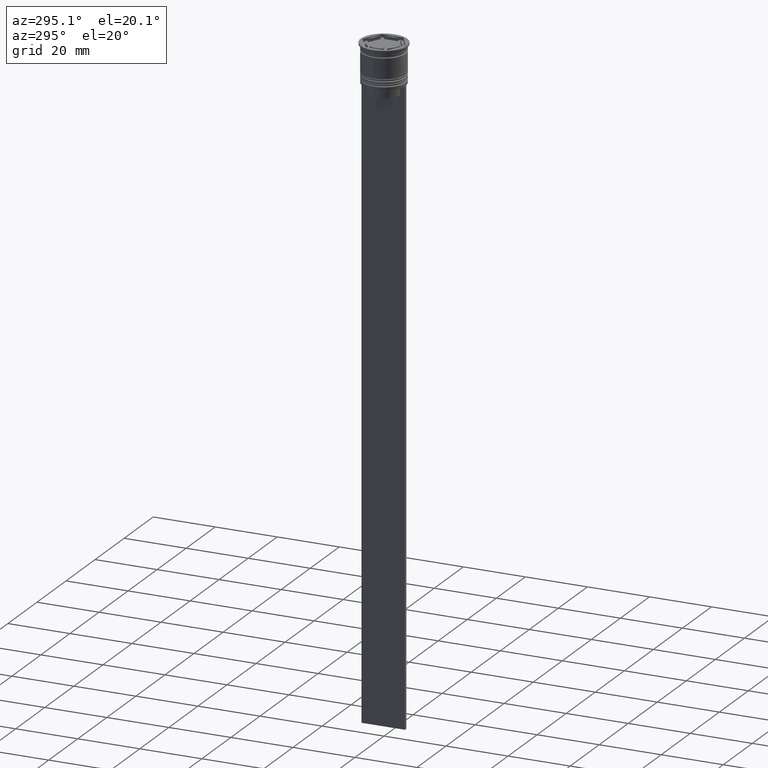
[diagram: clean part render]
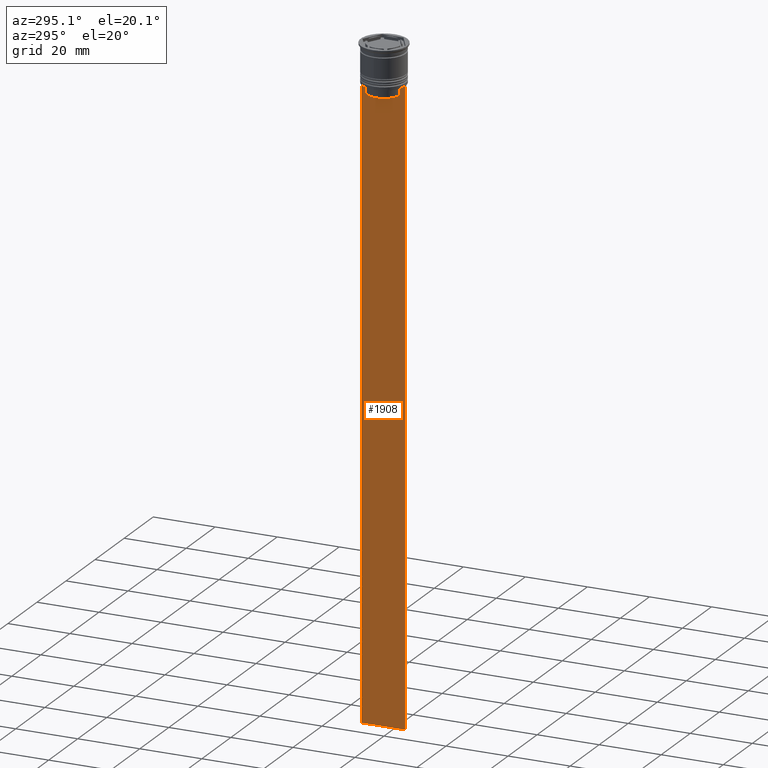
[diagram: same view with one face highlighted and labeled with its STEP entity id]
A machine part, auxiliary view. The second image highlights one B-rep face of the part: STEP entity #1908.
In plain terms, the highlighted planar face has unit normal (-1, 0, 0).
Its self-contained STEP definition (entity closure, byte-faithful):
#6 = CARTESIAN_POINT ( 'NONE',  ( -0.5000000000000000000, -5.544156999454441959, -12.83336396790503642 ) ) ;
#23 = CARTESIAN_POINT ( 'NONE',  ( -0.5000000000000000000, -5.878775382679629402, -12.50000000000000000 ) ) ;
#35 = FACE_OUTER_BOUND ( 'NONE', #462, .T. ) ;
#74 = B_SPLINE_CURVE_WITH_KNOTS ( 'NONE', 3,
 ( #1910, #6, #393, #2475 ),
 .UNSPECIFIED., .F., .F.,
 ( 4, 4 ),
 ( 0.02539176325380714666, 0.02610162431828674801 ),
 .UNSPECIFIED. ) ;
#113 = CARTESIAN_POINT ( 'NONE',  ( -0.5000000000000000000, -6.999999999999997335, -212.5000000000000284 ) ) ;
#139 = CARTESIAN_POINT ( 'NONE',  ( -0.5000000000000000000, -5.376802023508029826, 0.000000000000000000 ) ) ;
#190 = LINE ( 'NONE', #2133, #931 ) ;
#218 = ORIENTED_EDGE ( 'NONE', *, *, #1150, .F. ) ;
#233 = VERTEX_POINT ( 'NONE', #372 ) ;
#237 = CARTESIAN_POINT ( 'NONE',  ( -0.5000000000000000000, 7.000000000000002665, -12.50000000000000000 ) ) ;
#248 = VECTOR ( 'NONE', #1520, 1000.000000000000000 ) ;
#270 = EDGE_CURVE ( 'NONE', #1045, #452, #190, .T. ) ;
#318 = CARTESIAN_POINT ( 'NONE',  ( -0.5000000000000000000, 5.544156989057553275, -12.83336397825725861 ) ) ;
#352 = CARTESIAN_POINT ( 'NONE',  ( -0.5000000000000000000, 5.376802023508029826, 0.000000000000000000 ) ) ;
#360 = VERTEX_POINT ( 'NONE', #1397 ) ;
#369 = VECTOR ( 'NONE', #1594, 1000.000000000000000 ) ;
#372 = CARTESIAN_POINT ( 'NONE',  ( -0.5000000000000000000, -6.999999999999997335, -12.50000000000000000 ) ) ;
#373 = ORIENTED_EDGE ( 'NONE', *, *, #700, .T. ) ;
#393 = CARTESIAN_POINT ( 'NONE',  ( -0.5000000000000000000, -5.711478856069293286, -12.66669469529570335 ) ) ;
#405 = LINE ( 'NONE', #794, #950 ) ;
#411 = PLANE ( 'NONE',  #1167 ) ;
#443 = CARTESIAN_POINT ( 'NONE',  ( -0.5000000000000000000, -6.999999999999997335, -12.50000000000000000 ) ) ;
#452 = VERTEX_POINT ( 'NONE', #851 ) ;
#462 = EDGE_LOOP ( 'NONE', ( #218, #1570, #1139, #373, #1865, #1606, #1211, #1173, #538, #1095, #1897, #2314 ) ) ;
#481 = CARTESIAN_POINT ( 'NONE',  ( -0.5000000000000000000, 5.376802023508029826, -15.50000000000000000 ) ) ;
#488 = VERTEX_POINT ( 'NONE', #481 ) ;
#538 = ORIENTED_EDGE ( 'NONE', *, *, #955, .F. ) ;
#566 = VECTOR ( 'NONE', #2328, 1000.000000000000000 ) ;
#695 = VECTOR ( 'NONE', #1806, 1000.000000000000000 ) ;
#700 = EDGE_CURVE ( 'NONE', #2473, #1707, #1916, .T. ) ;
#715 = LINE ( 'NONE', #2428, #1925 ) ;
#729 = B_SPLINE_CURVE_WITH_KNOTS ( 'NONE', 3,
 ( #2194, #1269, #318, #1827 ),
 .UNSPECIFIED., .F., .F.,
 ( 4, 4 ),
 ( 0.01003009312103698807, 0.01073859663834952557 ),
 .UNSPECIFIED. ) ;
#740 = DIRECTION ( 'NONE',  ( -0.000000000000000000, -0.000000000000000000, 1.000000000000000000 ) ) ;
#794 = CARTESIAN_POINT ( 'NONE',  ( -0.5000000000000000000, 5.400000000000003908, -15.50000000000000000 ) ) ;
#797 = DIRECTION ( 'NONE',  ( 0.000000000000000000, -1.000000000000000000, 0.000000000000000000 ) ) ;
#851 = CARTESIAN_POINT ( 'NONE',  ( -0.5000000000000000000, -6.881860213634102053, -12.50000000000000000 ) ) ;
#877 = CARTESIAN_POINT ( 'NONE',  ( -0.5000000000000000000, 7.000000000000002665, -212.5000000000000284 ) ) ;
#931 = VECTOR ( 'NONE', #1958, 1000.000000000000000 ) ;
#950 = VECTOR ( 'NONE', #1543, 1000.000000000000000 ) ;
#955 = EDGE_CURVE ( 'NONE', #1255, #1045, #74, .T. ) ;
#957 = CARTESIAN_POINT ( 'NONE',  ( -0.5000000000000000000, -6.999999999999997335, -12.50000000000000000 ) ) ;
#976 = LINE ( 'NONE', #2363, #695 ) ;
#999 = VERTEX_POINT ( 'NONE', #2315 ) ;
#1045 = VERTEX_POINT ( 'NONE', #23 ) ;
#1057 = EDGE_CURVE ( 'NONE', #2473, #1096, #1586, .T. ) ;
#1095 = ORIENTED_EDGE ( 'NONE', *, *, #1764, .F. ) ;
#1096 = VERTEX_POINT ( 'NONE', #1361 ) ;
#1101 = EDGE_CURVE ( 'NONE', #233, #1257, #976, .T. ) ;
#1139 = ORIENTED_EDGE ( 'NONE', *, *, #1057, .F. ) ;
#1150 = EDGE_CURVE ( 'NONE', #999, #2489, #729, .T. ) ;
#1154 = CARTESIAN_POINT ( 'NONE',  ( -0.5000000000000000000, 7.000000000000002665, 1.535668847618198329 ) ) ;
#1167 = AXIS2_PLACEMENT_3D ( 'NONE', #1932, #2308, #2293 ) ;
#1173 = ORIENTED_EDGE ( 'NONE', *, *, #270, .F. ) ;
#1199 = LINE ( 'NONE', #1430, #369 ) ;
#1211 = ORIENTED_EDGE ( 'NONE', *, *, #1319, .F. ) ;
#1255 = VERTEX_POINT ( 'NONE', #1644 ) ;
#1257 = VERTEX_POINT ( 'NONE', #113 ) ;
#1269 = CARTESIAN_POINT ( 'NONE',  ( -0.5000000000000000000, 5.711478846560141598, -12.66669470477064685 ) ) ;
#1300 = LINE ( 'NONE', #352, #248 ) ;
#1319 = EDGE_CURVE ( 'NONE', #452, #233, #715, .T. ) ;
#1361 = CARTESIAN_POINT ( 'NONE',  ( -0.5000000000000000000, 6.881860213634102053, -12.50000000000000000 ) ) ;
#1365 = DIRECTION ( 'NONE',  ( 0.000000000000000000, 0.000000000000000000, -1.000000000000000000 ) ) ;
#1397 = CARTESIAN_POINT ( 'NONE',  ( -0.5000000000000000000, -5.376802023508029826, -15.50000000000000000 ) ) ;
#1430 = CARTESIAN_POINT ( 'NONE',  ( -0.5000000000000000000, -6.999999999999997335, -212.5000000000000284 ) ) ;
#1520 = DIRECTION ( 'NONE',  ( 0.000000000000000000, 0.000000000000000000, -1.000000000000000000 ) ) ;
#1525 = EDGE_CURVE ( 'NONE', #488, #360, #405, .T. ) ;
#1543 = DIRECTION ( 'NONE',  ( 0.000000000000000000, -1.000000000000000000, 0.000000000000000000 ) ) ;
#1570 = ORIENTED_EDGE ( 'NONE', *, *, #1975, .F. ) ;
#1586 = LINE ( 'NONE', #443, #1801 ) ;
#1594 = DIRECTION ( 'NONE',  ( 0.000000000000000000, 1.000000000000000000, 0.000000000000000000 ) ) ;
#1600 = CARTESIAN_POINT ( 'NONE',  ( -0.5000000000000000000, 5.376802023508029826, -13.00000000000000178 ) ) ;
#1606 = ORIENTED_EDGE ( 'NONE', *, *, #1101, .F. ) ;
#1644 = CARTESIAN_POINT ( 'NONE',  ( -0.5000000000000000000, -5.376802023508029826, -13.00000000000000178 ) ) ;
#1707 = VERTEX_POINT ( 'NONE', #877 ) ;
#1712 = LINE ( 'NONE', #139, #1905 ) ;
#1764 = EDGE_CURVE ( 'NONE', #360, #1255, #1712, .T. ) ;
#1801 = VECTOR ( 'NONE', #797, 1000.000000000000000 ) ;
#1806 = DIRECTION ( 'NONE',  ( 0.000000000000000000, 0.000000000000000000, -1.000000000000000000 ) ) ;
#1827 = CARTESIAN_POINT ( 'NONE',  ( -0.5000000000000000000, 5.376802023508029826, -13.00000000000000178 ) ) ;
#1865 = ORIENTED_EDGE ( 'NONE', *, *, #2047, .F. ) ;
#1897 = ORIENTED_EDGE ( 'NONE', *, *, #1525, .F. ) ;
#1905 = VECTOR ( 'NONE', #740, 1000.000000000000000 ) ;
#1908 = ADVANCED_FACE ( 'NONE', ( #35 ), #411, .T. ) ;
#1910 = CARTESIAN_POINT ( 'NONE',  ( -0.5000000000000000000, -5.376802023508029826, -13.00000000000000178 ) ) ;
#1916 = LINE ( 'NONE', #1154, #2040 ) ;
#1925 = VECTOR ( 'NONE', #2069, 1000.000000000000000 ) ;
#1932 = CARTESIAN_POINT ( 'NONE',  ( -0.5000000000000000000, -6.999999999999997335, 1.535668847618198329 ) ) ;
#1958 = DIRECTION ( 'NONE',  ( 0.000000000000000000, -1.000000000000000000, 0.000000000000000000 ) ) ;
#1975 = EDGE_CURVE ( 'NONE', #1096, #999, #2132, .T. ) ;
#2040 = VECTOR ( 'NONE', #1365, 1000.000000000000000 ) ;
#2047 = EDGE_CURVE ( 'NONE', #1257, #1707, #1199, .T. ) ;
#2069 = DIRECTION ( 'NONE',  ( 0.000000000000000000, -1.000000000000000000, 0.000000000000000000 ) ) ;
#2132 = LINE ( 'NONE', #957, #566 ) ;
#2133 = CARTESIAN_POINT ( 'NONE',  ( -0.5000000000000000000, -6.999999999999997335, -12.50000000000000000 ) ) ;
#2194 = CARTESIAN_POINT ( 'NONE',  ( -0.5000000000000000000, 5.878775382679629402, -12.50000000000000000 ) ) ;
#2293 = DIRECTION ( 'NONE',  ( 0.000000000000000000, 0.000000000000000000, 1.000000000000000000 ) ) ;
#2308 = DIRECTION ( 'NONE',  ( -1.000000000000000000, 0.000000000000000000, 0.000000000000000000 ) ) ;
#2314 = ORIENTED_EDGE ( 'NONE', *, *, #2354, .F. ) ;
#2315 = CARTESIAN_POINT ( 'NONE',  ( -0.5000000000000000000, 5.878775382679629402, -12.50000000000000000 ) ) ;
#2328 = DIRECTION ( 'NONE',  ( 0.000000000000000000, -1.000000000000000000, 0.000000000000000000 ) ) ;
#2354 = EDGE_CURVE ( 'NONE', #2489, #488, #1300, .T. ) ;
#2363 = CARTESIAN_POINT ( 'NONE',  ( -0.5000000000000000000, -6.999999999999997335, 1.535668847618198329 ) ) ;
#2428 = CARTESIAN_POINT ( 'NONE',  ( -0.5000000000000000000, -6.999999999999997335, -12.50000000000000000 ) ) ;
#2473 = VERTEX_POINT ( 'NONE', #237 ) ;
#2475 = CARTESIAN_POINT ( 'NONE',  ( -0.5000000000000000000, -5.878775382679629402, -12.50000000000000000 ) ) ;
#2489 = VERTEX_POINT ( 'NONE', #1600 ) ;